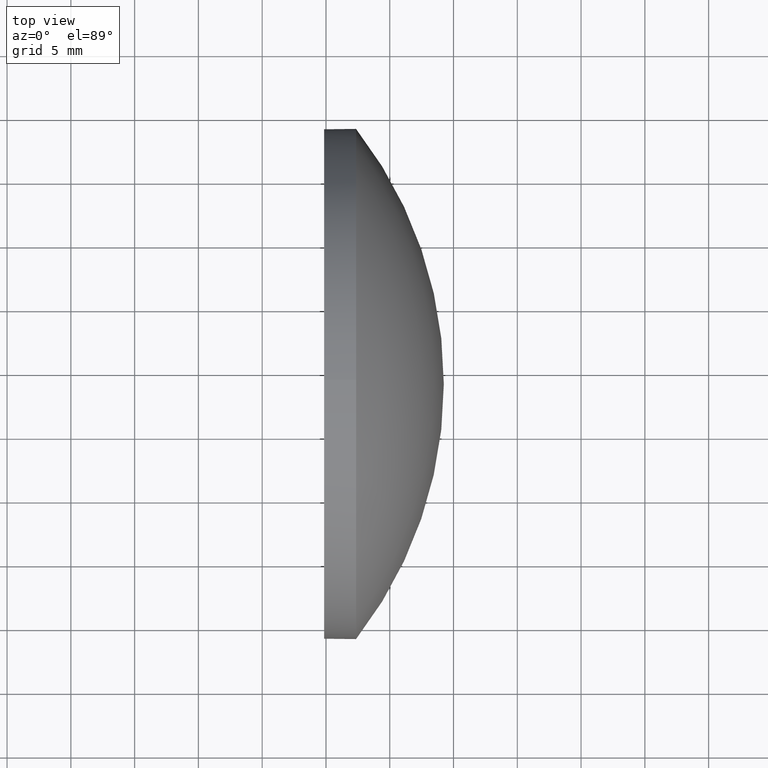
[diagram: clean part render]
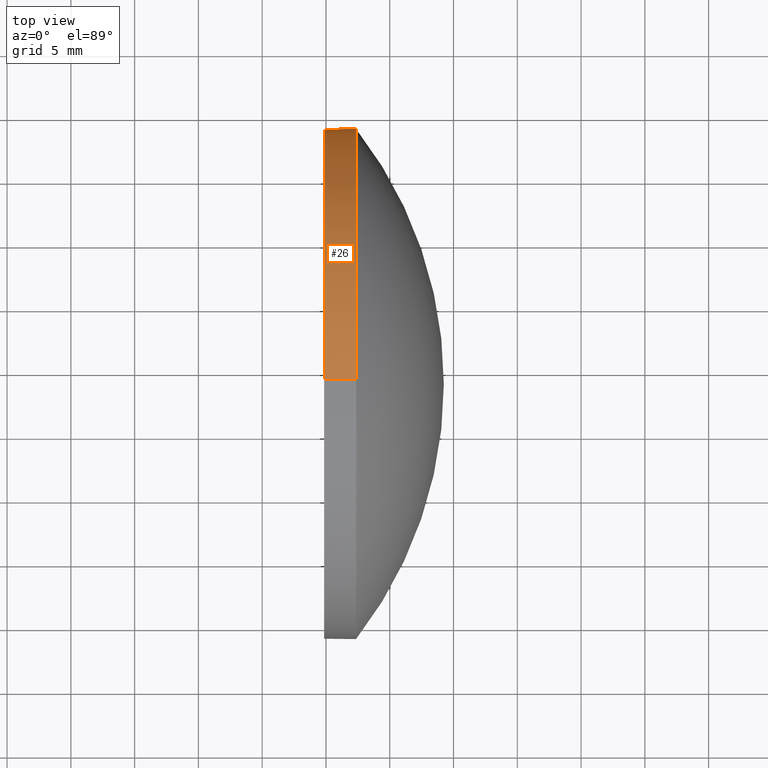
[diagram: same view with one face highlighted and labeled with its STEP entity id]
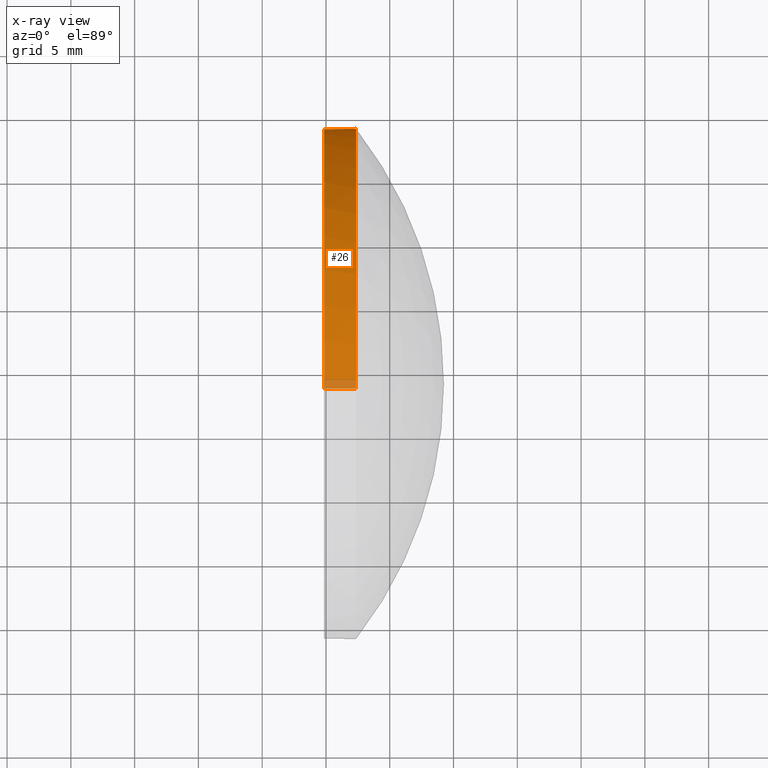
[diagram: x-ray of the same camera — body ghosted, the highlighted face saturated]
A machine part, top view. The second image highlights one B-rep face of the part: STEP entity #26.
The next image is the same camera in x-ray: the body ghosted, the highlighted face saturated — about 3% of this face is hidden behind the body in this view.
In plain terms, the highlighted cylindrical surface (partial cylindrical patch) has radius 20 mm, axis along (-1, -0, -0).
Its self-contained STEP definition (entity closure, byte-faithful):
#3 = VERTEX_POINT ( 'NONE', #4 ) ;
#4 = CARTESIAN_POINT ( 'NONE',  ( 332.3594795055551000, -61.02737710045642000, 20.00000000000000400 ) ) ;
#5 = DIRECTION ( 'NONE',  ( 0.0000000000000000000, 0.0000000000000000000, 1.000000000000000000 ) ) ;
#7 = VECTOR ( 'NONE', #65, 1000.000000000000000 ) ;
#9 = CARTESIAN_POINT ( 'NONE',  ( 332.3594795055551000, -61.02737710045642000, 0.0000000000000000000 ) ) ;
#10 = CIRCLE ( 'NONE', #132, 20.00000000000000400 ) ;
#24 = DIRECTION ( 'NONE',  ( 0.0000000000000000000, 0.0000000000000000000, 1.000000000000000000 ) ) ;
#26 = ADVANCED_FACE ( 'NONE', ( #163 ), #182, .T. ) ;
#27 = LINE ( 'NONE', #119, #7 ) ;
#30 = VERTEX_POINT ( 'NONE', #91 ) ;
#32 = EDGE_CURVE ( 'NONE', #3, #30, #10, .T. ) ;
#34 = ORIENTED_EDGE ( 'NONE', *, *, #141, .T. ) ;
#35 = AXIS2_PLACEMENT_3D ( 'NONE', #133, #50, #51 ) ;
#40 = CARTESIAN_POINT ( 'NONE',  ( 329.8594795055551000, -61.02737710045642000, 20.00000000000000400 ) ) ;
#46 = LINE ( 'NONE', #120, #174 ) ;
#47 = ORIENTED_EDGE ( 'NONE', *, *, #130, .T. ) ;
#50 = DIRECTION ( 'NONE',  ( -1.000000000000000000, -0.0000000000000000000, -0.0000000000000000000 ) ) ;
#51 = DIRECTION ( 'NONE',  ( 0.0000000000000000000, 0.0000000000000000000, 1.000000000000000000 ) ) ;
#55 = DIRECTION ( 'NONE',  ( -1.000000000000000000, -0.0000000000000000000, -0.0000000000000000000 ) ) ;
#62 = ORIENTED_EDGE ( 'NONE', *, *, #103, .F. ) ;
#64 = CIRCLE ( 'NONE', #170, 20.00000000000000400 ) ;
#65 = DIRECTION ( 'NONE',  ( -1.000000000000000000, -0.0000000000000000000, -0.0000000000000000000 ) ) ;
#74 = ORIENTED_EDGE ( 'NONE', *, *, #172, .F. ) ;
#75 = EDGE_LOOP ( 'NONE', ( #47, #34, #74, #62, #162 ) ) ;
#91 = CARTESIAN_POINT ( 'NONE',  ( 332.3594795055551000, -41.02737710045641300, 0.0000000000000000000 ) ) ;
#93 = CARTESIAN_POINT ( 'NONE',  ( 329.8594795055551000, -61.02737710045642000, -20.00000000000000400 ) ) ;
#98 = CIRCLE ( 'NONE', #99, 20.00000000000000400 ) ;
#99 = AXIS2_PLACEMENT_3D ( 'NONE', #166, #178, #5 ) ;
#100 = VERTEX_POINT ( 'NONE', #146 ) ;
#103 = EDGE_CURVE ( 'NONE', #3, #186, #27, .T. ) ;
#117 = VERTEX_POINT ( 'NONE', #93 ) ;
#119 = CARTESIAN_POINT ( 'NONE',  ( 325.1649363249780400, -61.02737710045642000, 20.00000000000000400 ) ) ;
#120 = CARTESIAN_POINT ( 'NONE',  ( 325.1649363249780400, -61.02737710045642000, -20.00000000000000400 ) ) ;
#122 = DIRECTION ( 'NONE',  ( -1.000000000000000000, -0.0000000000000000000, -0.0000000000000000000 ) ) ;
#123 = DIRECTION ( 'NONE',  ( -1.000000000000000000, -0.0000000000000000000, -0.0000000000000000000 ) ) ;
#130 = EDGE_CURVE ( 'NONE', #30, #100, #64, .T. ) ;
#132 = AXIS2_PLACEMENT_3D ( 'NONE', #179, #55, #148 ) ;
#133 = CARTESIAN_POINT ( 'NONE',  ( 325.1649363249780400, -61.02737710045642000, 0.0000000000000000000 ) ) ;
#141 = EDGE_CURVE ( 'NONE', #100, #117, #46, .T. ) ;
#146 = CARTESIAN_POINT ( 'NONE',  ( 332.3594795055551000, -61.02737710045642000, -20.00000000000000400 ) ) ;
#148 = DIRECTION ( 'NONE',  ( 0.0000000000000000000, 0.0000000000000000000, 1.000000000000000000 ) ) ;
#162 = ORIENTED_EDGE ( 'NONE', *, *, #32, .T. ) ;
#163 = FACE_OUTER_BOUND ( 'NONE', #75, .T. ) ;
#166 = CARTESIAN_POINT ( 'NONE',  ( 329.8594795055551000, -61.02737710045642000, 0.0000000000000000000 ) ) ;
#170 = AXIS2_PLACEMENT_3D ( 'NONE', #9, #123, #24 ) ;
#172 = EDGE_CURVE ( 'NONE', #186, #117, #98, .T. ) ;
#174 = VECTOR ( 'NONE', #122, 1000.000000000000000 ) ;
#178 = DIRECTION ( 'NONE',  ( -1.000000000000000000, -0.0000000000000000000, -0.0000000000000000000 ) ) ;
#179 = CARTESIAN_POINT ( 'NONE',  ( 332.3594795055551000, -61.02737710045642000, 0.0000000000000000000 ) ) ;
#182 = CYLINDRICAL_SURFACE ( 'NONE', #35, 20.00000000000000400 ) ;
#186 = VERTEX_POINT ( 'NONE', #40 ) ;